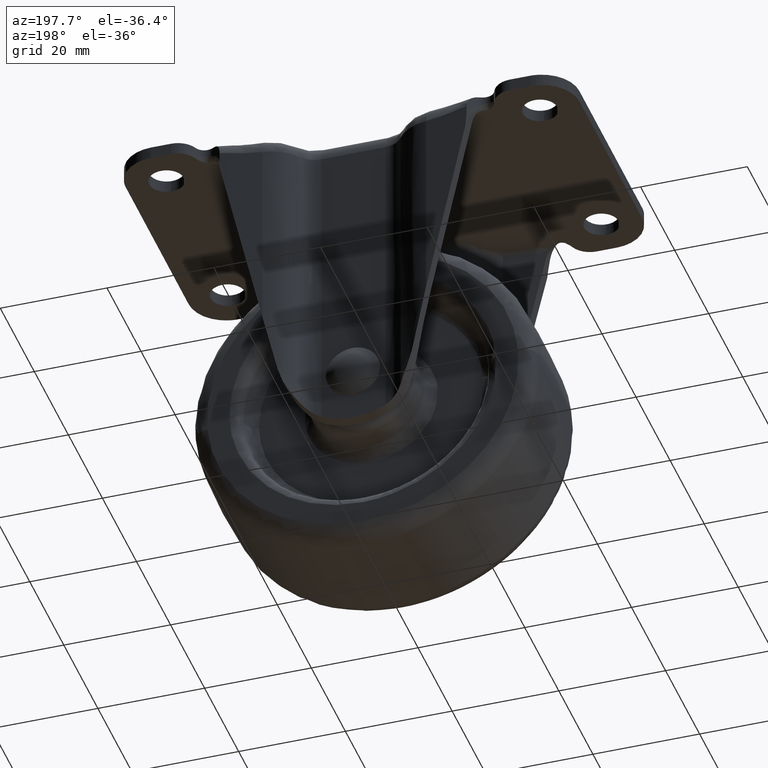
[diagram: clean part render]
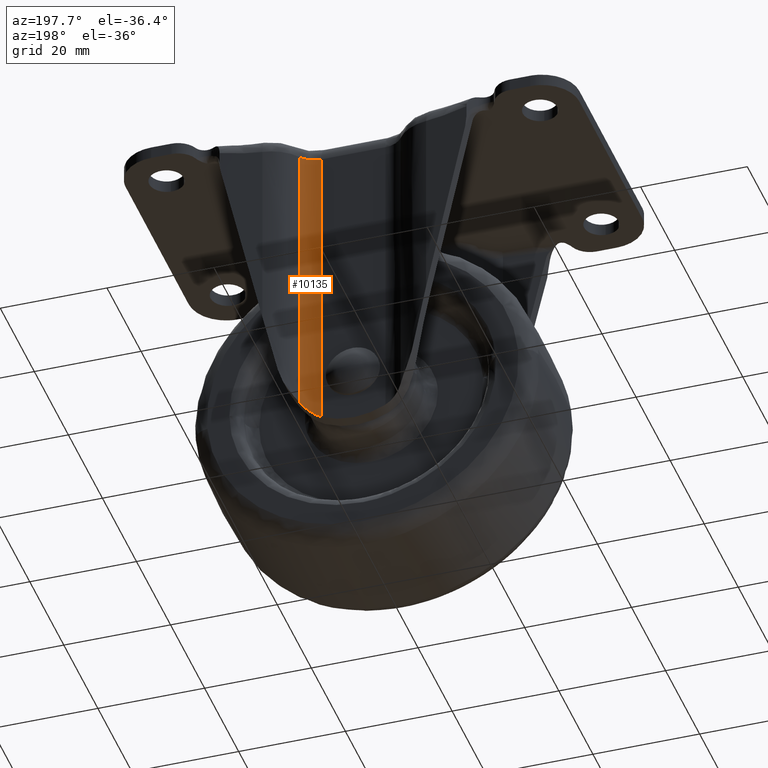
[diagram: same view with one face highlighted and labeled with its STEP entity id]
A machine part, auxiliary view. The second image highlights one B-rep face of the part: STEP entity #10135.
In plain terms, the highlighted face is a freeform B-spline surface patch.
Its self-contained STEP definition (entity closure, byte-faithful):
#7630=CARTESIAN_POINT('',(9.448886680217260,19.851990993398299,-4.0));
#7631=VERTEX_POINT('',#7630);
#7694=CARTESIAN_POINT('',(6.0,18.025001000000000,-4.0));
#7695=VERTEX_POINT('',#7694);
#7725=CARTESIAN_POINT('',(6.0,18.025001000000000,-4.0));
#7726=CARTESIAN_POINT('',(8.208352025065370,18.025001000000007,-4.000000000000000));
#7727=CARTESIAN_POINT('',(9.448886680217269,19.851990993398289,-4.0));
#7735=(BOUNDED_CURVE()B_SPLINE_CURVE(2,(#7725,#7726,#7727),.UNSPECIFIED.,.F.,.U.)CURVE()GEOMETRIC_REPRESENTATION_ITEM()QUASI_UNIFORM_CURVE()RATIONAL_B_SPLINE_CURVE((1.0,0.883670410059472,1.0))REPRESENTATION_ITEM(''));
#7736=EDGE_CURVE('',#7695,#7631,#7735,.T.);
#9132=CARTESIAN_POINT('',(6.0,18.025001000000000,-61.082560848403297));
#9133=VERTEX_POINT('',#9132);
#9147=CARTESIAN_POINT('',(9.448887560227231,19.851990395867301,-58.478521304841401));
#9148=VERTEX_POINT('',#9147);
#9149=CARTESIAN_POINT('',(6.0,18.025001000000000,-61.082560848403297));
#9150=CARTESIAN_POINT('',(6.180423211986022,18.025000976474811,-60.988692770254943));
#9151=CARTESIAN_POINT('',(6.356347275896763,18.036648726414239,-60.891793820862347));
#9152=CARTESIAN_POINT('',(6.699991903966839,18.080540701462439,-60.692241529482359));
#9153=CARTESIAN_POINT('',(6.867708940569194,18.112798676392821,-60.589587452892843));
#9154=CARTESIAN_POINT('',(7.195443961976046,18.196500264082442,-60.378827439724027));
#9155=CARTESIAN_POINT('',(7.355460378864185,18.247947765356109,-60.270720386238473));
#9156=CARTESIAN_POINT('',(7.589935259339739,18.339188709265120,-60.104715255017901));
#9157=CARTESIAN_POINT('',(7.667167120415816,18.371954710969870,-60.048739734434307));
#9158=CARTESIAN_POINT('',(7.819798653497970,18.442229524902849,-59.935554247837032));
#9159=CARTESIAN_POINT('',(7.894824774824549,18.479576233735958,-59.878616965154933));
#9160=CARTESIAN_POINT('',(8.114968435742551,18.597480119879570,-59.707841814984157));
#9161=CARTESIAN_POINT('',(8.255699987389050,18.684112747477549,-59.593638003127850));
#9162=CARTESIAN_POINT('',(8.525893728842236,18.873265531907251,-59.365313738706952));
#9163=CARTESIAN_POINT('',(8.655355342755117,18.975780185722780,-59.251187964631072));
#9164=CARTESIAN_POINT('',(8.841326815313590,19.142132656066199,-59.080895558333417));
#9165=CARTESIAN_POINT('',(8.901943488723331,19.199688920746890,-59.024283806187199));
#9166=CARTESIAN_POINT('',(9.020419623115734,19.319249056937242,-58.911553396788356));
#9167=CARTESIAN_POINT('',(9.078144728697090,19.381130172353711,-58.855559097927873));
#9168=CARTESIAN_POINT('',(9.245898471340944,19.572387370675550,-58.689914160261040));
#9169=CARTESIAN_POINT('',(9.350905377702588,19.707687797583969,-58.582213980269060));
#9170=CARTESIAN_POINT('',(9.448887560227231,19.851990395867301,-58.478521304841401));
#9171=B_SPLINE_CURVE_WITH_KNOTS('',3,(#9149,#9150,#9151,#9152,#9153,#9154,#9155,#9156,#9157,#9158,#9159,#9160,#9161,#9162,#9163,#9164,#9165,#9166,#9167,#9168,#9169,#9170),.UNSPECIFIED.,.F.,.U.,(4,2,2,2,2,2,2,2,2,2,4),(0.0,0.124999999999999,0.249999999999998,0.374999999999997,0.437499999999996,0.499999999999996,0.624999999999996,0.749999999999997,0.812499999999997,0.874999999999998,1.0),.UNSPECIFIED.);
#9172=EDGE_CURVE('',#9133,#9148,#9171,.T.);
#10099=CARTESIAN_POINT('',(9.448887560227231,19.851990395867301,-58.478521304841401));
#10100=CARTESIAN_POINT('',(9.448886680217260,19.851990993398299,-4.0));
#10101=QUASI_UNIFORM_CURVE('',1,(#10099,#10100),.UNSPECIFIED.,.F.,.U.);
#10102=EDGE_CURVE('',#9148,#7631,#10101,.T.);
#10111=CARTESIAN_POINT('',(9.515930259304760,19.953906392723770,-62.509624869613383));
#10112=CARTESIAN_POINT('',(9.515930259304760,19.953906392723770,-2.537259378259662));
#10113=CARTESIAN_POINT('',(8.218017872909163,17.916592039436452,-62.509624869613383));
#10114=CARTESIAN_POINT('',(8.218017872909163,17.916592039436452,-2.537259378259662));
#10115=CARTESIAN_POINT('',(5.805039618666793,18.029562307308343,-62.509624869613383));
#10116=CARTESIAN_POINT('',(5.805039618666793,18.029562307308343,-2.537259378259662));
#10124=(BOUNDED_SURFACE()B_SPLINE_SURFACE(1,2,((#10111,#10113,#10115),(#10112,#10114,#10116)),.UNSPECIFIED.,.F.,.F.,.U.)B_SPLINE_SURFACE_WITH_KNOTS((2,2),(3,3),(0.0,59.972365491353720),(0.0,4.482163693239746),.UNSPECIFIED.)GEOMETRIC_REPRESENTATION_ITEM()RATIONAL_B_SPLINE_SURFACE(((1.0,0.861551750306098,0.991500274425579),(1.0,0.861551750306098,0.991500274425579)))REPRESENTATION_ITEM('')SURFACE());
#10125=CARTESIAN_POINT('',(6.0,18.025001000000000,-61.082560848403297));
#10126=CARTESIAN_POINT('',(6.0,18.025001000000000,-4.0));
#10127=QUASI_UNIFORM_CURVE('',1,(#10125,#10126),.UNSPECIFIED.,.F.,.U.);
#10128=EDGE_CURVE('',#9133,#7695,#10127,.T.);
#10129=ORIENTED_EDGE('',*,*,#10128,.T.);
#10130=ORIENTED_EDGE('',*,*,#7736,.T.);
#10131=ORIENTED_EDGE('',*,*,#10102,.F.);
#10132=ORIENTED_EDGE('',*,*,#9172,.F.);
#10133=EDGE_LOOP('',(#10129,#10130,#10131,#10132));
#10134=FACE_OUTER_BOUND('',#10133,.T.);
#10135=ADVANCED_FACE('',(#10134),#10124,.F.);